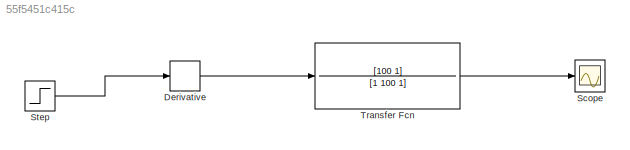
MODEL slx_55f5451c415c
KIND model
CONFIG AbsTol = auto
CONFIG EnableMultiTasking = off
CONFIG FixedStep = auto
CONFIG MaxStep = auto
CONFIG MinStep = auto
CONFIG RelTol = 1e-3
CONFIG SampleTimeConstraint = Unconstrained
CONFIG Solver = VariableStepAuto
CONFIG SolverName = VariableStepAuto
CONFIG StartTime = 0.0
CONFIG StopTime = 10.0
BLOCK [Derivative] Derivative
BLOCK [Scope] Scope
  Floating = off
  NumInputPorts = 1
  Ports = [1]
  ScopeSpecificationString = Simulink.scopes.TimeScopeBlockCfg('CurrentConfiguration', extmgr.ConfigurationSet(extmgr.Configuration('Core','General UI',true),extmgr.Configuration('Core','Source UI',true),extmgr.Configuration('Sources','WiredSimulink',true),extmgr.Configuration('Visuals','Time Domain',true,'SerializedDisplays',{struct('MinYLimReal','-18.7752','MaxYLimReal','116.43535','YLabelReal','','MinYLimMag','0.00000','Ma...<+1388ch>
BLOCK [Step] Step
  After = 20
  SampleTime = 0
  Time = 0.001
BLOCK [TransferFcn] Transfer Fcn
  Denominator = [1 100 1]
  Numerator = [100 1]
LINE Derivative:1 -> Transfer Fcn:1
LINE Step:1 -> Derivative:1
LINE Transfer Fcn:1 -> Scope:1
